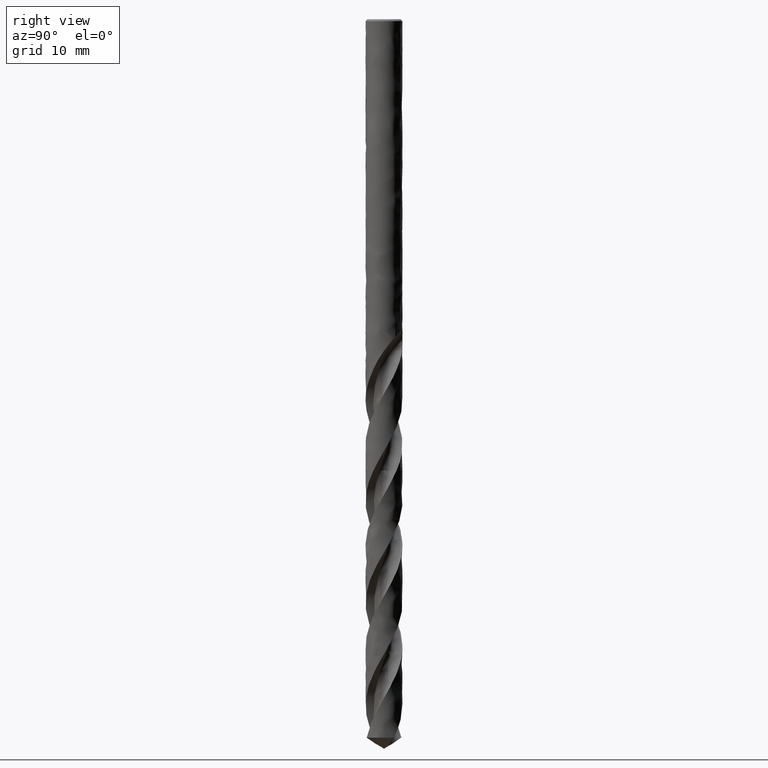
[diagram: clean part render]
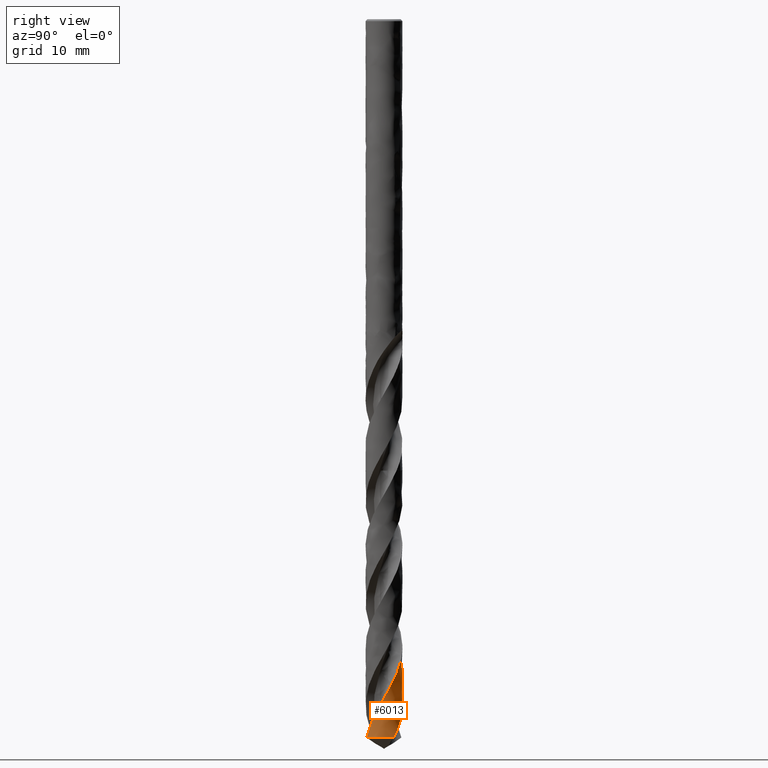
[diagram: same view with one face highlighted and labeled with its STEP entity id]
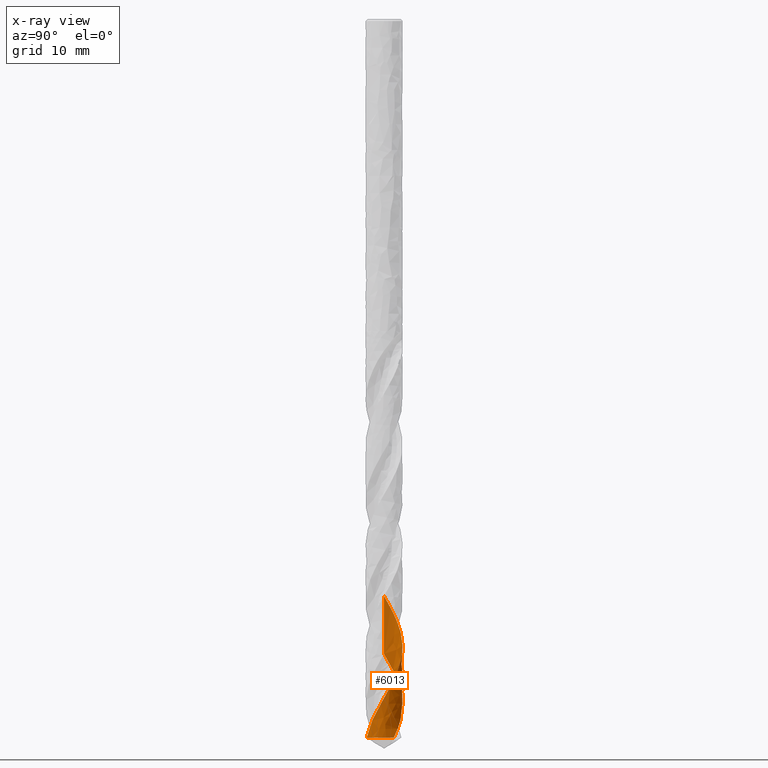
[diagram: x-ray of the same camera — body ghosted, the highlighted face saturated]
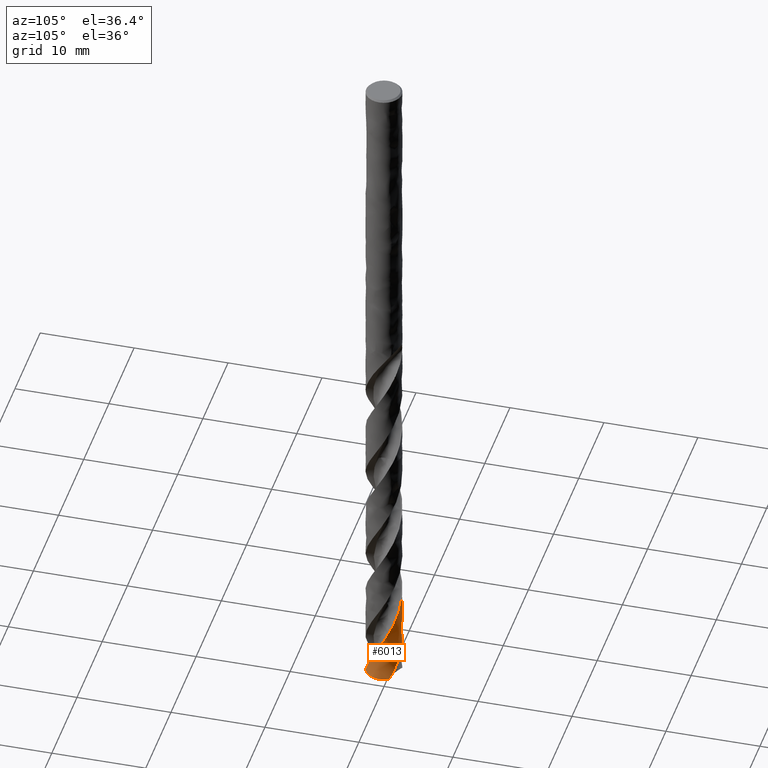
[diagram: same view with one face highlighted and labeled with its STEP entity id]
A machine part, right view. The second image highlights one B-rep face of the part: STEP entity #6013.
The next image is the same camera in x-ray: the body ghosted, the highlighted face saturated — about 0% of this face is hidden behind the body in this view.
A second angle (auxiliary view) of the same face is appended — the face is thin or edge-on in the first view.
In plain terms, the highlighted face is a freeform B-spline surface patch.
Its self-contained STEP definition (entity closure, byte-faithful):
#3931 = VERTEX_POINT('', #3932);
#3932 = CARTESIAN_POINT('', (-1.9, 4.11134696202521E-15, -65.2433913008664));
#4104 = EDGE_CURVE('', #3931, #4105, #4107, .T.);
#4105 = VERTEX_POINT('', #4106);
#4106 = CARTESIAN_POINT('', (1.60981524926355, 1.00920506500837, -73.8583648238476));
#4107 = B_SPLINE_CURVE_WITH_KNOTS('', 3, (#4108, #4109, #4110, #4111, #4112, #4113, #4114, #4115, #4116, #4117, #4118, #4119, #4120, #4121, #4122, #4123, #4124, #4125, #4126, #4127, #4128, #4129, #4130, #4131, #4132, #4133, #4134, #4135, #4136, #4137, #4138, #4139, #4140, #4141, #4142, #4143, #4144, #4145, #4146, #4147, #4148, #4149, #4150, #4151, #4152, #4153, #4154, #4155, #4156, #4157, #4158, #4159, #4160, #4161, #4162, #4163, #4164, #4165, #4166, #4167, #4168, #4169, #4170, #4171, #4172, #4173, #4174, #4175, #4176, #4177, #4178, #4179, #4180, #4181, #4182, #4183), .UNSPECIFIED., .F., .U., (4, 3, 3, 3, 3, 3, 3, 3, 3, 3, 3, 3, 3, 3, 3, 3, 3, 3, 3, 3, 3, 3, 3, 3, 3, 4), (0., 0.444569944891154, 0.888923585895965, 1.33307123176384, 1.77702119205104, 2.22078004301044, 2.66435282503351, 3.10774318620417, 3.55095348147092, 3.99398483377918, 4.43683716103442, 4.87950917088929, 5.32199832024393, 5.76430076281877, 5.96111344274805, 6.01947714924126, 6.05840254662874, 6.50295312827981, 6.94728913947412, 7.39142069841956, 7.83535595626421, 8.27910135448757, 8.72266181853032, 9.16604089240951, 9.60924084424867, 9.91221435372527), .UNSPECIFIED.);
#4108 = CARTESIAN_POINT('', (-1.9, 4.16763574905905E-15, -65.2433913008664));
#4109 = CARTESIAN_POINT('', (-1.9, 0.073393648584727, -65.3721299625148));
#4110 = CARTESIAN_POINT('', (-1.89574031331603, 0.146814083812739, -65.5009234050195));
#4111 = CARTESIAN_POINT('', (-1.88725405782184, 0.219709174216716, -65.6296656277683));
#4112 = CARTESIAN_POINT('', (-1.87877193128434, 0.292568797780141, -65.7583452114578));
#4113 = CARTESIAN_POINT('', (-1.86606049579644, 0.36496270151508, -65.8870796322486));
#4114 = CARTESIAN_POINT('', (-1.84921623470682, 0.43634770229479, -66.0157628052237));
#4115 = CARTESIAN_POINT('', (-1.8323797823433, 0.507699610146584, -66.1443863227681));
#4116 = CARTESIAN_POINT('', (-1.81140078780342, 0.578101043651421, -66.2730646550361));
#4117 = CARTESIAN_POINT('', (-1.78643753638135, 0.647024673878912, -66.401691788342));
#4118 = CARTESIAN_POINT('', (-1.76148539584752, 0.715917626902572, -66.5302616710246));
#4119 = CARTESIAN_POINT('', (-1.73253249404517, 0.783389475389075, -66.6588862747348));
#4120 = CARTESIAN_POINT('', (-1.69979662978192, 0.848935461258464, -66.7874597943798));
#4121 = CARTESIAN_POINT('', (-1.66707485748753, 0.914453231224214, -66.915977966348));
#4122 = CARTESIAN_POINT('', (-1.63054703601324, 0.978099543737119, -67.0445507100983));
#4123 = CARTESIAN_POINT('', (-1.59048746380355, 1.0393986855311, -67.1730725330667));
#4124 = CARTESIAN_POINT('', (-1.55044468864923, 1.10067212447749, -67.3015404665885));
#4125 = CARTESIAN_POINT('', (-1.50684074977261, 1.15964989268194, -67.4300627879303));
#4126 = CARTESIAN_POINT('', (-1.46000270624197, 1.2158914827262, -67.5585343775261));
#4127 = CARTESIAN_POINT('', (-1.41318392501997, 1.27210994322056, -67.6869531327329));
#4128 = CARTESIAN_POINT('', (-1.36309564686074, 1.32564015988282, -67.8154260827372));
#4129 = CARTESIAN_POINT('', (-1.31011323183274, 1.37608259918392, -67.9438484884128));
#4130 = CARTESIAN_POINT('', (-1.25715233357031, 1.42650455323269, -68.0722187402785));
#4131 = CARTESIAN_POINT('', (-1.20125640741936, 1.47388240412571, -68.2006430150992));
#4132 = CARTESIAN_POINT('', (-1.14284394674088, 1.51786287700758, -68.3290168995209));
#4133 = CARTESIAN_POINT('', (-1.0844550696719, 1.5618255930909, -68.4573389539131));
#4134 = CARTESIAN_POINT('', (-1.02350392285991, 1.60242964810484, -68.5857149151821));
#4135 = CARTESIAN_POINT('', (-0.960446281673736, 1.63937272760624, -68.7140405703693));
#4136 = CARTESIAN_POINT('', (-0.897414121522928, 1.67630087873579, -68.8423143702937));
#4137 = CARTESIAN_POINT('', (-0.832225749402303, 1.70960116163846, -68.970642055464));
#4138 = CARTESIAN_POINT('', (-0.765367728240642, 1.73902623343289, -69.0989194091255));
#4139 = CARTESIAN_POINT('', (-0.698536929843381, 1.76843932413989, -69.227144531744));
#4140 = CARTESIAN_POINT('', (-0.629983798769032, 1.79400417819245, -69.355423610755));
#4141 = CARTESIAN_POINT('', (-0.560218837557427, 1.81553156239319, -69.4836522717732));
#4142 = CARTESIAN_POINT('', (-0.490482695099712, 1.83705005398686, -69.6118279636481));
#4143 = CARTESIAN_POINT('', (-0.419479921471489, 1.85455165887086, -69.7400576803527));
#4144 = CARTESIAN_POINT('', (-0.347738140191148, 1.86790743503434, -69.8682369419154));
#4145 = CARTESIAN_POINT('', (-0.276026630109501, 1.88125757577385, -69.996362118678));
#4146 = CARTESIAN_POINT('', (-0.20351972716638, 1.89047601568495, -70.1245413001405));
#4147 = CARTESIAN_POINT('', (-0.130755378580654, 1.89549545791403, -70.2526700737669));
#4148 = CARTESIAN_POINT('', (-0.0983772023148917, 1.89772897457993, -70.309683928736));
#4149 = CARTESIAN_POINT('', (-0.0659398665970557, 1.89913274399109, -70.3667027531556));
#4150 = CARTESIAN_POINT('', (-0.033491167802097, 1.89970480382592, -70.4237173937972));
#4151 = CARTESIAN_POINT('', (-0.0238686865004044, 1.89987444499085, -70.4406247686342));
#4152 = CARTESIAN_POINT('', (-0.0142449060940591, 1.89997097386644, -70.4575322957963));
#4153 = CARTESIAN_POINT('', (-0.00462106399510048, 1.89999438045684, -70.4744397309592));
#4154 = CARTESIAN_POINT('', (0.00179751187344836, 1.90000999137135, -70.4857160646958));
#4155 = CARTESIAN_POINT('', (0.00821616602458406, 1.89999307695512, -70.4969924458062));
#4156 = CARTESIAN_POINT('', (0.0146345316547374, 1.89994363876491, -70.5082688016414));
#4157 = CARTESIAN_POINT('', (0.0879359843215059, 1.89937902600088, -70.6370513159353));
#4158 = CARTESIAN_POINT('', (0.161231151949128, 1.89456512575486, -70.765888463017));
#4159 = CARTESIAN_POINT('', (0.233970626620144, 1.8855391127948, -70.89467455564));
#4160 = CARTESIAN_POINT('', (0.306674992255317, 1.87651745640472, -71.0233984873035));
#4161 = CARTESIAN_POINT('', (0.378882657176876, 1.86328052558405, -71.1521770894925));
#4162 = CARTESIAN_POINT('', (0.450053510458474, 1.84592844870141, -71.2809046340211));
#4163 = CARTESIAN_POINT('', (0.521191615908159, 1.82858435602677, -71.4095729471678));
#4164 = CARTESIAN_POINT('', (0.591350761678764, 1.80711504534177, -71.5382958771463));
#4165 = CARTESIAN_POINT('', (0.660006947084851, 1.78168202264043, -71.6669678320062));
#4166 = CARTESIAN_POINT('', (0.728632787237377, 1.75626024104605, -71.7955829153246));
#4167 = CARTESIAN_POINT('', (0.795811870324191, 1.7268579263374, -71.924252487256));
#4168 = CARTESIAN_POINT('', (0.861042962236494, 1.69369566840773, -72.0528712334403));
#4169 = CARTESIAN_POINT('', (0.926246156498885, 1.66054759311758, -72.1814349727152));
#4170 = CARTESIAN_POINT('', (0.989555345675696, 1.62361618753233, -72.3100530203269));
#4171 = CARTESIAN_POINT('', (1.05049849841819, 1.58317810268497, -72.4386204342447));
#4172 = CARTESIAN_POINT('', (1.11141625265049, 1.54275687070891, -72.5671342667407));
#4173 = CARTESIAN_POINT('', (1.17001910221488, 1.49879925427161, -72.695702201239));
#4174 = CARTESIAN_POINT('', (1.2258703554678, 1.45163420722483, -72.8242197088601));
#4175 = CARTESIAN_POINT('', (1.28169876884029, 1.4044884479106, -72.952684660373));
#4176 = CARTESIAN_POINT('', (1.33482315974285, 1.35409959960675, -73.0812035164867));
#4177 = CARTESIAN_POINT('', (1.38484793881454, 1.30084441281851, -73.2096721301135));
#4178 = CARTESIAN_POINT('', (1.43485250822591, 1.24761074075268, -73.3380888433203));
#4179 = CARTESIAN_POINT('', (1.48180074076567, 1.1914696434853, -73.4665593031219));
#4180 = CARTESIAN_POINT('', (1.52534341049903, 1.13284044774505, -73.5949796533543));
#4181 = CARTESIAN_POINT('', (1.55510937822162, 1.09276126200168, -73.6827683907779));
#4182 = CARTESIAN_POINT('', (1.58329940386295, 1.0515013373449, -73.7705744389992));
#4183 = CARTESIAN_POINT('', (1.60981524926367, 1.00920506500817, -73.8583648238476));
#4383 = VERTEX_POINT('', #4384);
#4384 = CARTESIAN_POINT('', (-1.9, 3.74789097402835E-15, -59.3077045665375));
#4502 = EDGE_CURVE('', #4383, #3931, #4503, .T.);
#4503 = LINE('', #4504, #4505);
#4504 = CARTESIAN_POINT('', (-1.9, 3.74789097402835E-15, -59.3077045665375));
#4505 = VECTOR('', #4506, 5.9356867343289);
#4506 = DIRECTION('', (0., 3.63455987996865E-16, -5.9356867343289));
#4533 = VERTEX_POINT('', #4534);
#4534 = CARTESIAN_POINT('', (0.699352139445631, -1.76660878098486, -73.7971137949369));
#4619 = EDGE_CURVE('', #4533, #4383, #4620, .T.);
#4620 = B_SPLINE_CURVE_WITH_KNOTS('', 3, (#4621, #4622, #4623, #4624, #4625, #4626, #4627, #4628, #4629, #4630, #4631, #4632, #4633, #4634, #4635, #4636, #4637, #4638, #4639, #4640, #4641, #4642, #4643, #4644, #4645, #4646, #4647, #4648, #4649, #4650, #4651, #4652, #4653, #4654, #4655, #4656, #4657, #4658, #4659, #4660, #4661, #4662, #4663, #4664, #4665, #4666, #4667, #4668, #4669, #4670, #4671, #4672, #4673, #4674, #4675, #4676, #4677, #4678, #4679, #4680, #4681, #4682, #4683, #4684, #4685, #4686, #4687, #4688, #4689, #4690, #4691, #4692, #4693, #4694, #4695, #4696, #4697, #4698, #4699, #4700, #4701, #4702, #4703, #4704, #4705, #4706, #4707, #4708, #4709, #4710, #4711, #4712, #4713, #4714, #4715, #4716, #4717, #4718, #4719, #4720, #4721, #4722, #4723, #4724, #4725, #4726, #4727, #4728, #4729, #4730, #4731, #4732, #4733, #4734, #4735, #4736, #4737, #4738, #4739, #4740, #4741, #4742, #4743, #4744, #4745, #4746, #4747), .UNSPECIFIED., .F., .U., (4, 3, 3, 3, 3, 3, 3, 3, 3, 3, 3, 3, 3, 3, 3, 3, 3, 3, 3, 3, 3, 3, 3, 3, 3, 3, 3, 3, 3, 3, 3, 3, 3, 3, 3, 3, 3, 3, 3, 3, 3, 3, 4), (0., 0.443895212843414, 0.887604504932006, 1.33113215407658, 1.7744811214737, 2.21765314646784, 2.66064873287674, 3.10346715547508, 3.54610652581127, 3.98856374433876, 4.43083441698659, 4.56209421648356, 4.60100832867755, 5.04556635833549, 5.48991176878794, 5.93405431923386, 6.37800183931573, 6.82176048187114, 7.26533491075667, 7.7087284367651, 8.15194311060644, 8.59497977890174, 9.03783810687989, 9.4805165633427, 9.92301231174482, 10.3653212102195, 10.562135076117, 10.6204988769011, 10.6594186601064, 11.1039743415815, 11.5483160302358, 11.9924535193902, 12.4363946573237, 12.8801456005349, 13.3237110017014, 13.7670941453815, 14.2102970404325, 14.6533204750686, 15.0961640388798, 15.5388260832335, 15.9813036636291, 16.4235925252459, 16.6650704514584), .UNSPECIFIED.);
#4621 = CARTESIAN_POINT('', (0.699352139445631, -1.76660878098486, -73.7971137949369));
#4622 = CARTESIAN_POINT('', (0.767146614489865, -1.73977080096625, -73.6683609534048));
#4623 = CARTESIAN_POINT('', (0.833425751816778, -1.70901128839566, -73.5395593434253));
#4624 = CARTESIAN_POINT('', (0.897697934939237, -1.67455618526398, -73.4108131024493));
#4625 = CARTESIAN_POINT('', (0.96194319834629, -1.64011551328316, -73.2821207854572));
#4626 = CARTESIAN_POINT('', (1.02423345710422, -1.6019554075507, -73.1533796355354));
#4627 = CARTESIAN_POINT('', (1.08410689673899, -1.56035644531721, -73.0246938796145));
#4628 = CARTESIAN_POINT('', (1.14395582575828, -1.51877451260756, -72.8960608042662));
#4629 = CARTESIAN_POINT('', (1.20143664439623, -1.47372406247399, -72.7673789327736));
#4630 = CARTESIAN_POINT('', (1.2561230395006, -1.42553670932592, -72.6387523542867));
#4631 = CARTESIAN_POINT('', (1.31078740337274, -1.37736876917381, -72.5101775949408));
#4632 = CARTESIAN_POINT('', (1.36270254418571, -1.32602857089318, -72.3815542233899));
#4633 = CARTESIAN_POINT('', (1.41148285957978, -1.27189470362624, -72.2529858870015));
#4634 = CARTESIAN_POINT('', (1.46024370654862, -1.21778244140918, -72.1244688627669));
#4635 = CARTESIAN_POINT('', (1.50591109709425, -1.16083554924639, -71.9959035205411));
#4636 = CARTESIAN_POINT('', (1.54814508394356, -1.10147482906392, -71.8673929066148));
#4637 = CARTESIAN_POINT('', (1.59036225631797, -1.04213774196498, -71.7389334561863));
#4638 = CARTESIAN_POINT('', (1.62918289594992, -0.980340723461126, -71.610425922371));
#4639 = CARTESIAN_POINT('', (1.66431745790781, -0.9165409970663, -71.4819729449004));
#4640 = CARTESIAN_POINT('', (1.69943796877114, -0.852766785604327, -71.3535713386391));
#4641 = CARTESIAN_POINT('', (1.73090389502147, -0.786939628488968, -71.2251217007055));
#4642 = CARTESIAN_POINT('', (1.75848021814933, -0.719546608898667, -71.096726606817));
#4643 = CARTESIAN_POINT('', (1.78604539087607, -0.652180839467789, -70.9683834290884));
#4644 = CARTESIAN_POINT('', (1.80974643851241, -0.583195927740893, -70.8399921508734));
#4645 = CARTESIAN_POINT('', (1.82940601513502, -0.513101970165984, -70.7116555034711));
#4646 = CARTESIAN_POINT('', (1.84905750158835, -0.443036857158472, -70.583371668254));
#4647 = CARTESIAN_POINT('', (1.86468663662688, -0.371807373951633, -70.4550396003162));
#4648 = CARTESIAN_POINT('', (1.87617595510429, -0.299939636410073, -70.3267622943726));
#4649 = CARTESIAN_POINT('', (1.88766042953139, -0.228102199267642, -70.1985390718565));
#4650 = CARTESIAN_POINT('', (1.89501771935042, -0.155569996153013, -70.0702674714528));
#4651 = CARTESIAN_POINT('', (1.89819156440482, -0.0828781323533113, -69.9420507605085));
#4652 = CARTESIAN_POINT('', (1.89913351758246, -0.0613041957178884, -69.9039978196025));
#4653 = CARTESIAN_POINT('', (1.89970767544346, -0.0397128802905904, -69.8659438463735));
#4654 = CARTESIAN_POINT('', (1.89991360972819, -0.0181183765721637, -69.827891470238));
#4655 = CARTESIAN_POINT('', (1.89997466231162, -0.0117163331156545, -69.8166102216009));
#4656 = CARTESIAN_POINT('', (1.90000335605615, -0.00531392342984408, -69.8053289592606));
#4657 = CARTESIAN_POINT('', (1.89999968821241, 0.00108848185124209, -69.7940477513548));
#4658 = CARTESIAN_POINT('', (1.89995778646284, 0.0742300882341094, -69.6651703010933));
#4659 = CARTESIAN_POINT('', (1.89568541222978, 0.147404790685324, -69.536243921497));
#4660 = CARTESIAN_POINT('', (1.88721255210902, 0.220065406555954, -69.4073729043186));
#4661 = CARTESIAN_POINT('', (1.8787437443114, 0.292691270962464, -69.2785635224081));
#4662 = CARTESIAN_POINT('', (1.86607151995611, 0.364862976387596, -69.14970540054));
#4663 = CARTESIAN_POINT('', (1.84928868676576, 0.436040540546829, -69.0209025099477));
#4664 = CARTESIAN_POINT('', (1.83251351555542, 0.507185609532734, -68.8921584226076));
#4665 = CARTESIAN_POINT('', (1.81161774204865, 0.577395760284296, -68.7633656123809));
#4666 = CARTESIAN_POINT('', (1.7867555768997, 0.646145887875105, -68.6346280501252));
#4667 = CARTESIAN_POINT('', (1.76190432914004, 0.714865826144042, -68.5059470186694));
#4668 = CARTESIAN_POINT('', (1.7330699349202, 0.78218303324625, -68.3772171748873));
#4669 = CARTESIAN_POINT('', (1.70046569000415, 0.847594500406164, -68.2485426806592));
#4670 = CARTESIAN_POINT('', (1.66787531656806, 0.912978138249412, -68.1199229310103));
#4671 = CARTESIAN_POINT('', (1.63149201126399, 0.976510445192376, -67.9912542311436));
#4672 = CARTESIAN_POINT('', (1.59158505914789, 1.03771720593678, -67.862641011955));
#4673 = CARTESIAN_POINT('', (1.5516946732581, 1.09889855845036, -67.7340811828547));
#4674 = CARTESIAN_POINT('', (1.50825171320527, 1.15780518375423, -67.6054722678819));
#4675 = CARTESIAN_POINT('', (1.46157769236596, 1.21399779619989, -67.4769189461614));
#4676 = CARTESIAN_POINT('', (1.41492270658393, 1.27016749162284, -67.3484180523184));
#4677 = CARTESIAN_POINT('', (1.36500234314537, 1.32366989407236, -67.2198679828174));
#4678 = CARTESIAN_POINT('', (1.31218601842427, 1.3741062015186, -67.0913735594566));
#4679 = CARTESIAN_POINT('', (1.25939099828607, 1.4245221644123, -66.9629309670422));
#4680 = CARTESIAN_POINT('', (1.2036606966737, 1.4719142843482, -66.8344391919071));
#4681 = CARTESIAN_POINT('', (1.14540763012153, 1.51592920707379, -66.7060030216638));
#4682 = CARTESIAN_POINT('', (1.08717795938528, 1.55992645236041, -66.5776184344388));
#4683 = CARTESIAN_POINT('', (1.02638149132459, 1.60058399362491, -66.4491847704768));
#4684 = CARTESIAN_POINT('', (0.963468634541465, 1.63759829941742, -66.3208065480172));
#4685 = CARTESIAN_POINT('', (0.900581102747523, 1.67459770544315, -66.1924800030248));
#4686 = CARTESIAN_POINT('', (0.835528648956839, 1.70798632737635, -66.0641046129925));
#4687 = CARTESIAN_POINT('', (0.768793963258411, 1.73751427103708, -65.9357843802973));
#4688 = CARTESIAN_POINT('', (0.702086382546578, 1.76703022161642, -65.8075162661989));
#4689 = CARTESIAN_POINT('', (0.633643883816355, 1.79271251216192, -65.6791995751742));
#4690 = CARTESIAN_POINT('', (0.563975014554162, 1.8143682600175, -65.5509378154876));
#4691 = CARTESIAN_POINT('', (0.494334899941777, 1.8360150698287, -65.4227289936773));
#4692 = CARTESIAN_POINT('', (0.423412541090553, 1.85365633038316, -65.29447172305));
#4693 = CARTESIAN_POINT('', (0.351735128775632, 1.86715891106949, -65.1662693018292));
#4694 = CARTESIAN_POINT('', (0.280087983235793, 1.88065579010505, -65.0381210158475));
#4695 = CARTESIAN_POINT('', (0.207627901834498, 1.89002851320495, -64.9099242770818));
#4696 = CARTESIAN_POINT('', (0.134893278821762, 1.8952054778648, -64.7817824179574));
#4697 = CARTESIAN_POINT('', (0.102528607007334, 1.89750906802957, -64.7247632289595));
#4698 = CARTESIAN_POINT('', (0.0701010589353165, 1.89898361585941, -64.6677401790234));
#4699 = CARTESIAN_POINT('', (0.0376585231358, 1.89962676219179, -64.6107223339486));
#4700 = CARTESIAN_POINT('', (0.0280379118658598, 1.89981748282139, -64.5938140834251));
#4701 = CARTESIAN_POINT('', (0.0184156905652631, 1.89993511947843, -64.5769057666031));
#4702 = CARTESIAN_POINT('', (0.00879311797381928, 1.89997965280587, -64.5599976151715));
#4703 = CARTESIAN_POINT('', (0.00237632478857161, 1.90000934976573, -64.5487224483852));
#4704 = CARTESIAN_POINT('', (-0.0040406734487997, 1.90000653946357, -64.5374472658145));
#4705 = CARTESIAN_POINT('', (-0.0104575105843844, 1.89997122095899, -64.5261721402485));
#4706 = CARTESIAN_POINT('', (-0.0837529190062403, 1.89956780036982, -64.397383624052));
#4707 = CARTESIAN_POINT('', (-0.157060840984452, 1.89491580917352, -64.2685458159128));
#4708 = CARTESIAN_POINT('', (-0.229830327114274, 1.88604825514594, -64.139763713422));
#4709 = CARTESIAN_POINT('', (-0.302564784679032, 1.87718496963405, -64.011043601918));
#4710 = CARTESIAN_POINT('', (-0.374821368032503, 1.86410285749557, -63.8822742912168));
#4711 = CARTESIAN_POINT('', (-0.446057050006807, 1.84689823979001, -63.7535606361674));
#4712 = CARTESIAN_POINT('', (-0.517259995258452, 1.82970152855467, -63.6249061321378));
#4713 = CARTESIAN_POINT('', (-0.58750161735844, 1.80837194810991, -63.4962023950575));
#4714 = CARTESIAN_POINT('', (-0.656254395658153, 1.78306762860511, -63.3675543690819));
#4715 = CARTESIAN_POINT('', (-0.724976778658457, 1.75777449602812, -63.2389632178301));
#4716 = CARTESIAN_POINT('', (-0.792267822475968, 1.72848947719035, -63.110322729998));
#4717 = CARTESIAN_POINT('', (-0.857622666014048, 1.6954301409197, -62.9817380599454));
#4718 = CARTESIAN_POINT('', (-0.922949510015139, 1.66238496803862, -62.85320847856));
#4719 = CARTESIAN_POINT('', (-0.986394732904292, 1.62554196304824, -62.724629436961));
#4720 = CARTESIAN_POINT('', (-1.0474827952326, 1.58517500412154, -62.5961063240319));
#4721 = CARTESIAN_POINT('', (-1.10854531529633, 1.54482492350962, -62.4676369494477));
#4722 = CARTESIAN_POINT('', (-1.1673016826873, 1.50092144937267, -62.339118013492));
#4723 = CARTESIAN_POINT('', (-1.22331181078933, 1.45379098001856, -62.2106550811868));
#4724 = CARTESIAN_POINT('', (-1.27929892477636, 1.40667987619849, -62.0822449332761));
#4725 = CARTESIAN_POINT('', (-1.33258675072535, 1.3563068272796, -61.9537851812091));
#4726 = CARTESIAN_POINT('', (-1.38277623027154, 1.30304639096083, -61.8253814383189));
#4727 = CARTESIAN_POINT('', (-1.43294530627958, 1.24980760661682, -61.6970298954255));
#4728 = CARTESIAN_POINT('', (-1.48005855252907, 1.19364132709579, -61.5686287934542));
#4729 = CARTESIAN_POINT('', (-1.52376294411817, 1.13496541362824, -61.4402836095024));
#4730 = CARTESIAN_POINT('', (-1.56744963905336, 1.07631325903929, -61.3119903947055));
#4731 = CARTESIAN_POINT('', (-1.6077652357221, 1.01510648082143, -61.1836477771103));
#4732 = CARTESIAN_POINT('', (-1.64440716911786, 0.951800957214162, -61.0553608685303));
#4733 = CARTESIAN_POINT('', (-1.68103422561487, 0.888521136122522, -60.9271260453937));
#4734 = CARTESIAN_POINT('', (-1.7140202612414, 0.823092968728483, -60.7988420630805));
#4735 = CARTESIAN_POINT('', (-1.74311709983651, 0.756004481638584, -60.6706135335964));
#4736 = CARTESIAN_POINT('', (-1.77220201177673, 0.688943493798471, -60.5424375643729));
#4737 = CARTESIAN_POINT('', (-1.79742473724519, 0.62016856499398, -60.4142126418507));
#4738 = CARTESIAN_POINT('', (-1.81859492314558, 0.550193152910367, -60.2860430190389));
#4739 = CARTESIAN_POINT('', (-1.83975628710983, 0.480246900637599, -60.1579268064443));
#4740 = CARTESIAN_POINT('', (-1.85688590098995, 0.409043600701169, -60.0297617002653));
#4741 = CARTESIAN_POINT('', (-1.86985389528158, 0.337114832514598, -59.9016518688993));
#4742 = CARTESIAN_POINT('', (-1.88281635866238, 0.265216742287545, -59.7735966769817));
#4743 = CARTESIAN_POINT('', (-1.8916313995501, 0.192534796387684, -59.6454925537072));
#4744 = CARTESIAN_POINT('', (-1.89623130017322, 0.119611271389331, -59.5174437605527));
#4745 = CARTESIAN_POINT('', (-1.89874272327168, 0.0797969710148193, -59.4475325335054));
#4746 = CARTESIAN_POINT('', (-1.9, 0.0398967962638318, -59.3776138726092));
#4747 = CARTESIAN_POINT('', (-1.9, 3.07481826534935E-15, -59.3077045665375));
#5008 = VERTEX_POINT('', #5009);
#5009 = CARTESIAN_POINT('', (0.666986022612191, -1.77908112396258, -73.8583648238476));
#5109 = EDGE_CURVE('', #4533, #5008, #5110, .T.);
#5110 = CIRCLE('', #5111, 7.82469656246896);
#5111 = AXIS2_PLACEMENT_3D('', #5112, #5113, #5114);
#5112 = CARTESIAN_POINT('', (-2.13165147634783, 5.5279373503732, -73.8269727817278));
#5113 = DIRECTION('', (0.811888551525813, 0.313075799912622, -0.492768224838401));
#5114 = DIRECTION('', (0.361803629470225, -0.932246518845794, 0.00381599293374749));
#5988 = EDGE_CURVE('', #4105, #5008, #5989, .T.);
#5989 = CIRCLE('', #5990, 1.89999999999997);
#5990 = AXIS2_PLACEMENT_3D('', #5991, #5992, #5993);
#5991 = CARTESIAN_POINT('', (2.76924512939935E-31, 4.52252050358912E-15, -73.8583648238476));
#5992 = DIRECTION('', (3.74939945665464E-33, 6.12323399573677E-17, -1.));
#5993 = DIRECTION('', (-1., 6.12323399573677E-17, 0.));
#6013 = ADVANCED_FACE('', (#6014), #6021, .T.);
#6014 = FACE_OUTER_BOUND('', #6015, .T.);
#6015 = EDGE_LOOP('', (#6016, #6017, #6018, #6019, #6020));
#6016 = ORIENTED_EDGE('', *, *, #5109, .T.);
#6017 = ORIENTED_EDGE('', *, *, #5988, .F.);
#6018 = ORIENTED_EDGE('', *, *, #4104, .F.);
#6019 = ORIENTED_EDGE('', *, *, #4502, .F.);
#6020 = ORIENTED_EDGE('', *, *, #4619, .F.);
#6021 = (
   BOUNDED_SURFACE ()
   B_SPLINE_SURFACE (1, 2, ((#6022, #6023, #6024, #6025, #6026, #6027, #6028), (#6029, #6030, #6031, #6032, #6033, #6034, #6035)), .UNSPECIFIED., .F., .F., .U.)
   B_SPLINE_SURFACE_WITH_KNOTS ((2, 2), (3, 2, 2, 3), (-1.47126349627131, -0.983150102869422), (0., 0.25, 0.5, 0.690380794329829), .UNSPECIFIED.)
   GEOMETRIC_REPRESENTATION_ITEM ()
   RATIONAL_B_SPLINE_SURFACE (((1., 0.707106781186547, 1., 0.707106781186547, 1., 0.776955025393898, 0.893617886282086), (1., 0.707106781186547, 1., 0.707106781186547, 1., 0.776955025393898, 0.893617886282086)))
   REPRESENTATION_ITEM ('')
   SURFACE ()
);
#6022 = CARTESIAN_POINT('', (-1.9, 4.63886194950812E-15, -73.8583648238476));
#6023 = CARTESIAN_POINT('', (-1.9, 1.9, -73.8583648238476));
#6024 = CARTESIAN_POINT('', (9.99200722162641E-16, 1.9, -73.8583648238476));
#6025 = CARTESIAN_POINT('', (1.9, 1.9, -73.8583648238476));
#6026 = CARTESIAN_POINT('', (1.9, 3.750683529808E-15, -73.8583648238476));
#6027 = CARTESIAN_POINT('', (1.9, -1.31681828640778, -73.8583648238476));
#6028 = CARTESIAN_POINT('', (0.666986022612192, -1.77908112396258, -73.8583648238476));
#6029 = CARTESIAN_POINT('', (-1.9, 3.74789097402835E-15, -59.3077045665375));
#6030 = CARTESIAN_POINT('', (-1.9, 1.9, -59.3077045665375));
#6031 = CARTESIAN_POINT('', (9.99200722162641E-16, 1.9, -59.3077045665375));
#6032 = CARTESIAN_POINT('', (1.9, 1.9, -59.3077045665375));
#6033 = CARTESIAN_POINT('', (1.9, 2.85971255432822E-15, -59.3077045665375));
#6034 = CARTESIAN_POINT('', (1.9, -1.31681828640778, -59.3077045665375));
#6035 = CARTESIAN_POINT('', (0.666986022612192, -1.77908112396258, -59.3077045665375));